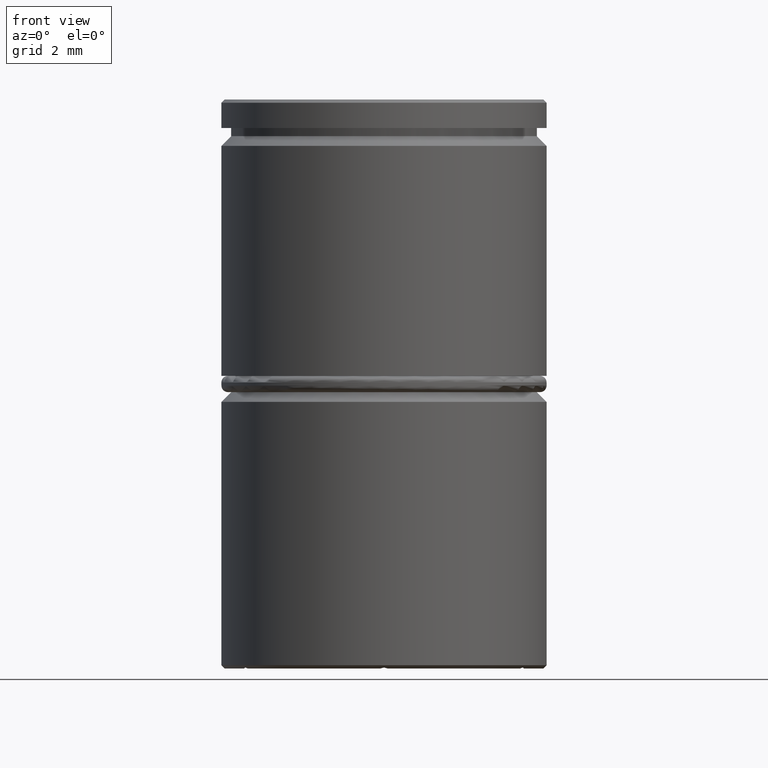
[diagram: clean part render]
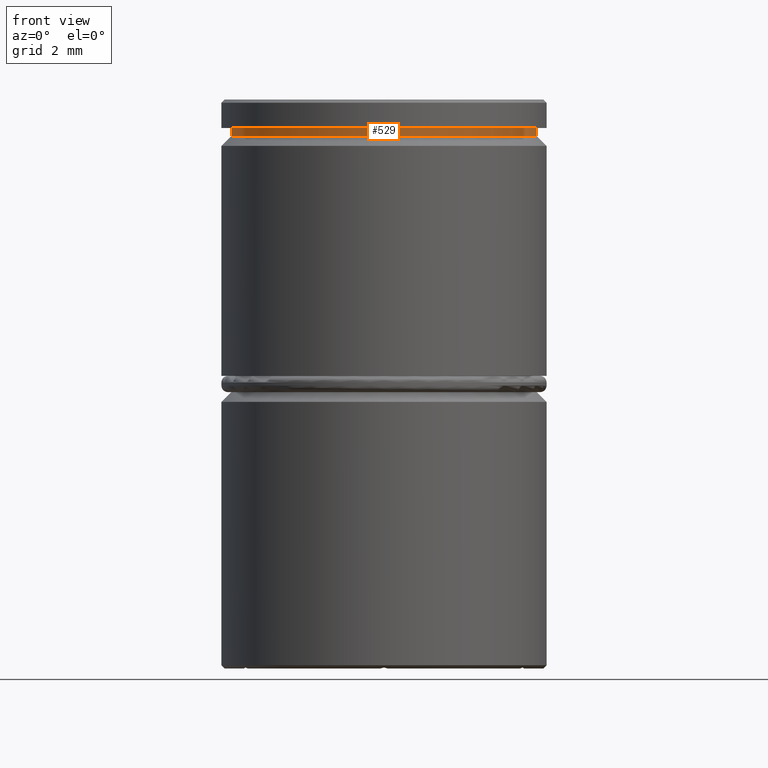
[diagram: same view with one face highlighted and labeled with its STEP entity id]
A machine part, front view. The second image highlights one B-rep face of the part: STEP entity #529.
In plain terms, the highlighted cylindrical surface (partial cylindrical patch) has radius 4.7 mm, axis along (-0, -0, 1).
Its self-contained STEP definition (entity closure, byte-faithful):
#103 = CYLINDRICAL_SURFACE ( 'NONE', #882, 4.700000000000000178 ) ;
#129 = LINE ( 'NONE', #277, #690 ) ;
#137 = EDGE_CURVE ( 'NONE', #894, #1322, #1003, .T. ) ;
#190 = ORIENTED_EDGE ( 'NONE', *, *, #220, .F. ) ;
#195 = VECTOR ( 'NONE', #921, 1000.000000000000000 ) ;
#211 = CIRCLE ( 'NONE', #499, 4.700000000000000178 ) ;
#219 = CARTESIAN_POINT ( 'NONE',  ( -4.700000000000000178, 5.755839955992559655E-16, -0.8749999999999998890 ) ) ;
#220 = EDGE_CURVE ( 'NONE', #894, #588, #129, .T. ) ;
#227 = CARTESIAN_POINT ( 'NONE',  ( 4.700000000000000178, 0.000000000000000000, -1.125000000000000222 ) ) ;
#272 = EDGE_LOOP ( 'NONE', ( #190, #566, #607, #1047 ) ) ;
#277 = CARTESIAN_POINT ( 'NONE',  ( -4.700000000000000178, 5.755839955992559655E-16, 0.000000000000000000 ) ) ;
#315 = DIRECTION ( 'NONE',  ( 1.000000000000000000, 0.000000000000000000, 0.000000000000000000 ) ) ;
#340 = CARTESIAN_POINT ( 'NONE',  ( 0.000000000000000000, 0.000000000000000000, 0.000000000000000000 ) ) ;
#486 = EDGE_CURVE ( 'NONE', #588, #820, #211, .T. ) ;
#488 = LINE ( 'NONE', #1339, #195 ) ;
#499 = AXIS2_PLACEMENT_3D ( 'NONE', #735, #646, #1157 ) ;
#529 = ADVANCED_FACE ( 'NONE', ( #746 ), #103, .T. ) ;
#544 = CARTESIAN_POINT ( 'NONE',  ( -4.700000000000000178, 5.755839955992559655E-16, -1.125000000000000222 ) ) ;
#561 = CARTESIAN_POINT ( 'NONE',  ( 0.000000000000000000, 0.000000000000000000, -1.125000000000000222 ) ) ;
#566 = ORIENTED_EDGE ( 'NONE', *, *, #137, .T. ) ;
#588 = VERTEX_POINT ( 'NONE', #219 ) ;
#607 = ORIENTED_EDGE ( 'NONE', *, *, #1154, .T. ) ;
#646 = DIRECTION ( 'NONE',  ( -0.000000000000000000, -0.000000000000000000, 1.000000000000000000 ) ) ;
#690 = VECTOR ( 'NONE', #1037, 1000.000000000000000 ) ;
#721 = CARTESIAN_POINT ( 'NONE',  ( 4.700000000000000178, 0.000000000000000000, -0.8749999999999998890 ) ) ;
#735 = CARTESIAN_POINT ( 'NONE',  ( 0.000000000000000000, 0.000000000000000000, -0.8749999999999998890 ) ) ;
#746 = FACE_OUTER_BOUND ( 'NONE', #272, .T. ) ;
#773 = DIRECTION ( 'NONE',  ( -0.000000000000000000, -0.000000000000000000, 1.000000000000000000 ) ) ;
#820 = VERTEX_POINT ( 'NONE', #721 ) ;
#882 = AXIS2_PLACEMENT_3D ( 'NONE', #340, #773, #315 ) ;
#894 = VERTEX_POINT ( 'NONE', #544 ) ;
#921 = DIRECTION ( 'NONE',  ( -0.000000000000000000, -0.000000000000000000, 1.000000000000000000 ) ) ;
#990 = DIRECTION ( 'NONE',  ( 1.000000000000000000, 0.000000000000000000, 0.000000000000000000 ) ) ;
#1003 = CIRCLE ( 'NONE', #1357, 4.700000000000000178 ) ;
#1037 = DIRECTION ( 'NONE',  ( -0.000000000000000000, -0.000000000000000000, 1.000000000000000000 ) ) ;
#1047 = ORIENTED_EDGE ( 'NONE', *, *, #486, .F. ) ;
#1085 = DIRECTION ( 'NONE',  ( -0.000000000000000000, -0.000000000000000000, 1.000000000000000000 ) ) ;
#1154 = EDGE_CURVE ( 'NONE', #1322, #820, #488, .T. ) ;
#1157 = DIRECTION ( 'NONE',  ( 1.000000000000000000, 0.000000000000000000, 0.000000000000000000 ) ) ;
#1322 = VERTEX_POINT ( 'NONE', #227 ) ;
#1339 = CARTESIAN_POINT ( 'NONE',  ( 4.700000000000000178, 0.000000000000000000, 0.000000000000000000 ) ) ;
#1357 = AXIS2_PLACEMENT_3D ( 'NONE', #561, #1085, #990 ) ;